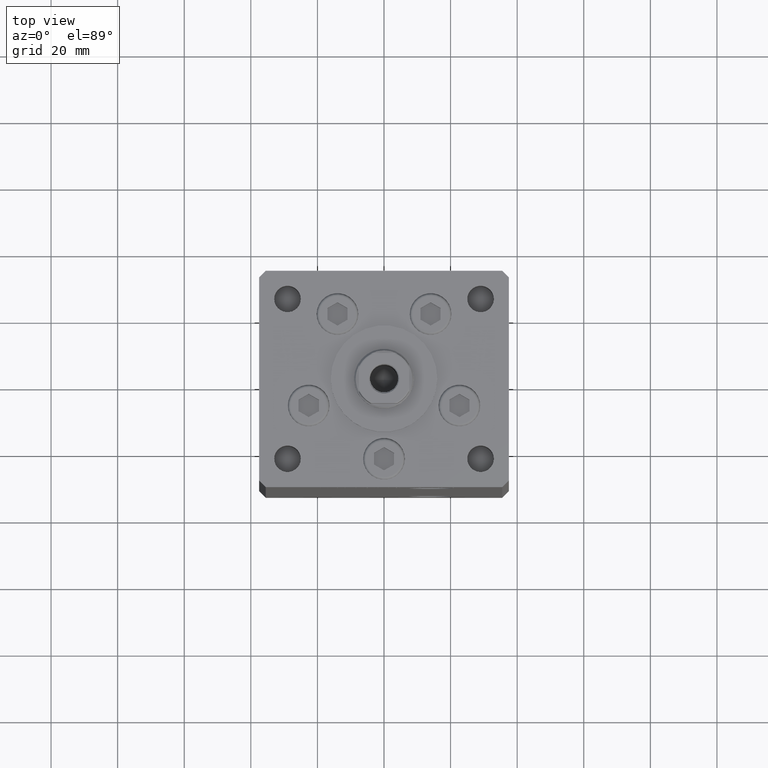
[diagram: clean part render]
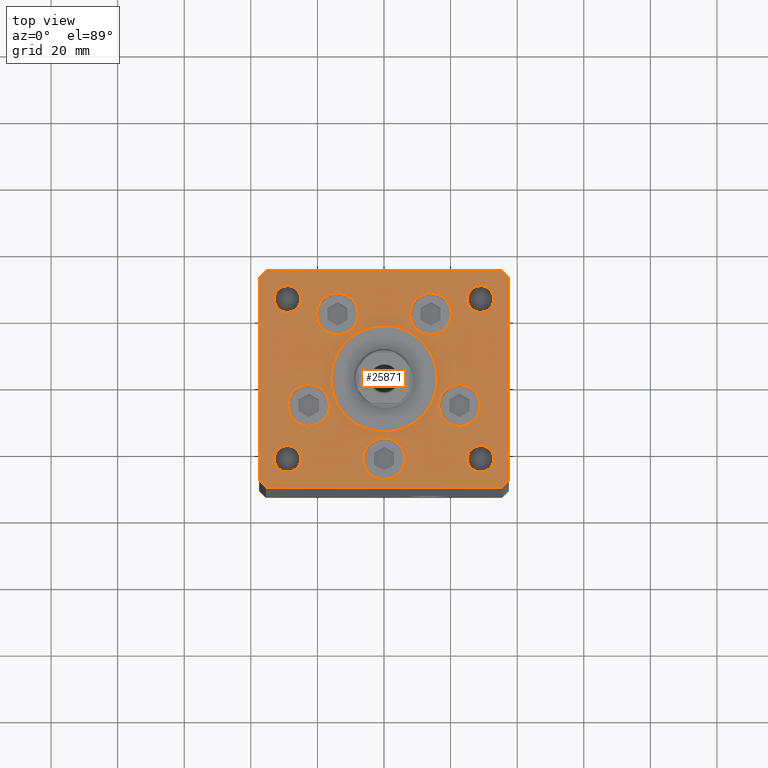
[diagram: same view with one face highlighted and labeled with its STEP entity id]
A machine part, top view. The second image highlights one B-rep face of the part: STEP entity #25871.
In plain terms, the highlighted planar face has unit normal (0, 0, 1).
Its self-contained STEP definition (entity closure, byte-faithful):
#737 = EDGE_LOOP ( 'NONE', ( #39099, #12081 ) ) ;
#1094 = EDGE_CURVE ( 'NONE', #7229, #20669, #46034, .T. ) ;
#1111 = DIRECTION ( 'NONE',  ( 2.275047181608926165E-16, -1.000000000000000000, 0.000000000000000000 ) ) ;
#1276 = LINE ( 'NONE', #21595, #21940 ) ;
#1583 = VERTEX_POINT ( 'NONE', #27508 ) ;
#1691 = EDGE_CURVE ( 'NONE', #40376, #29884, #42012, .T. ) ;
#1784 = ORIENTED_EDGE ( 'NONE', *, *, #12646, .T. ) ;
#1807 = AXIS2_PLACEMENT_3D ( 'NONE', #48741, #32401, #28440 ) ;
#1923 = VECTOR ( 'NONE', #44566, 1000.000000000000000 ) ;
#1967 = CIRCLE ( 'NONE', #7809, 6.250000000000000000 ) ;
#2212 = CARTESIAN_POINT ( 'NONE',  ( 29.00000000000000355, -23.99999999999999645, 0.000000000000000000 ) ) ;
#2290 = DIRECTION ( 'NONE',  ( 1.000000000000000000, 0.000000000000000000, 0.000000000000000000 ) ) ;
#2558 = CIRCLE ( 'NONE', #6767, 4.000000000000000000 ) ;
#2619 = ORIENTED_EDGE ( 'NONE', *, *, #10722, .F. ) ;
#2803 = CARTESIAN_POINT ( 'NONE',  ( 24.99999999999999645, 24.00000000000000355, 0.000000000000000000 ) ) ;
#2891 = DIRECTION ( 'NONE',  ( 1.000000000000000000, 1.172770800660376149E-15, 0.000000000000000000 ) ) ;
#2932 = CARTESIAN_POINT ( 'NONE',  ( -16.00000000000000355, -6.938893903907228378E-15, 0.000000000000000000 ) ) ;
#3154 = CARTESIAN_POINT ( 'NONE',  ( -28.87741699796953654, -8.000000000000000000, 0.000000000000000000 ) ) ;
#3343 = FACE_BOUND ( 'NONE', #737, .T. ) ;
#3506 = DIRECTION ( 'NONE',  ( 1.000000000000000000, 0.000000000000000000, 0.000000000000000000 ) ) ;
#3755 = ORIENTED_EDGE ( 'NONE', *, *, #37509, .T. ) ;
#4187 = CARTESIAN_POINT ( 'NONE',  ( 35.50000000000001421, -32.49999999999992184, 0.000000000000000000 ) ) ;
#4722 = LINE ( 'NONE', #4187, #23007 ) ;
#4935 = DIRECTION ( 'NONE',  ( 0.000000000000000000, 0.000000000000000000, 1.000000000000000000 ) ) ;
#5042 = VECTOR ( 'NONE', #26470, 1000.000000000000000 ) ;
#5086 = CIRCLE ( 'NONE', #15169, 16.00000000000000355 ) ;
#5206 = DIRECTION ( 'NONE',  ( 1.000000000000000000, 0.000000000000000000, 0.000000000000000000 ) ) ;
#5380 = CARTESIAN_POINT ( 'NONE',  ( -35.50000000000001421, -32.50000000000000711, 0.000000000000000000 ) ) ;
#5459 = CARTESIAN_POINT ( 'NONE',  ( -33.00000000000000000, 24.00000000000000711, 0.000000000000000000 ) ) ;
#5508 = CARTESIAN_POINT ( 'NONE',  ( -29.00000000000000000, 24.00000000000000711, 0.000000000000000000 ) ) ;
#5796 = ORIENTED_EDGE ( 'NONE', *, *, #25393, .F. ) ;
#5873 = AXIS2_PLACEMENT_3D ( 'NONE', #42605, #22812, #22301 ) ;
#5950 = AXIS2_PLACEMENT_3D ( 'NONE', #48353, #12223, #49150 ) ;
#5983 = DIRECTION ( 'NONE',  ( 1.000000000000000000, 0.000000000000000000, 0.000000000000000000 ) ) ;
#6049 = EDGE_LOOP ( 'NONE', ( #45644, #28560 ) ) ;
#6053 = CIRCLE ( 'NONE', #50694, 6.250000000000000000 ) ;
#6057 = VECTOR ( 'NONE', #2891, 1000.000000000000000 ) ;
#6767 = AXIS2_PLACEMENT_3D ( 'NONE', #5508, #37470, #28744 ) ;
#6836 = VERTEX_POINT ( 'NONE', #35425 ) ;
#6879 = DIRECTION ( 'NONE',  ( 0.000000000000000000, 1.000000000000000000, 0.000000000000000000 ) ) ;
#6897 = EDGE_CURVE ( 'NONE', #22475, #14531, #22605, .T. ) ;
#7016 = ORIENTED_EDGE ( 'NONE', *, *, #1691, .T. ) ;
#7050 = FACE_BOUND ( 'NONE', #46416, .T. ) ;
#7098 = CARTESIAN_POINT ( 'NONE',  ( -29.00000000000000000, -23.99999999999999645, 0.000000000000000000 ) ) ;
#7229 = VERTEX_POINT ( 'NONE', #25594 ) ;
#7315 = EDGE_CURVE ( 'NONE', #20669, #7229, #21783, .T. ) ;
#7611 = EDGE_LOOP ( 'NONE', ( #23431, #23966 ) ) ;
#7785 = ORIENTED_EDGE ( 'NONE', *, *, #18722, .F. ) ;
#7809 = AXIS2_PLACEMENT_3D ( 'NONE', #18357, #15152, #14398 ) ;
#8151 = CARTESIAN_POINT ( 'NONE',  ( 37.50000000000000711, 30.50000000000001421, 0.000000000000000000 ) ) ;
#8766 = CARTESIAN_POINT ( 'NONE',  ( 22.62741699796953299, -8.000000000000000000, 0.000000000000000000 ) ) ;
#9236 = VERTEX_POINT ( 'NONE', #44583 ) ;
#9726 = CARTESIAN_POINT ( 'NONE',  ( 29.00000000000000355, -23.99999999999999645, 0.000000000000000000 ) ) ;
#9941 = AXIS2_PLACEMENT_3D ( 'NONE', #28937, #48698, #44224 ) ;
#9942 = VERTEX_POINT ( 'NONE', #2932 ) ;
#10248 = DIRECTION ( 'NONE',  ( -0.000000000000000000, -0.000000000000000000, -1.000000000000000000 ) ) ;
#10470 = DIRECTION ( 'NONE',  ( 0.000000000000000000, 0.000000000000000000, 1.000000000000000000 ) ) ;
#10722 = EDGE_CURVE ( 'NONE', #9236, #9942, #18508, .T. ) ;
#10751 = DIRECTION ( 'NONE',  ( -1.000000000000000000, 0.000000000000000000, 0.000000000000000000 ) ) ;
#10958 = CIRCLE ( 'NONE', #39615, 4.000000000000000000 ) ;
#11008 = FACE_BOUND ( 'NONE', #23539, .T. ) ;
#11093 = DIRECTION ( 'NONE',  ( 0.000000000000000000, 0.000000000000000000, 1.000000000000000000 ) ) ;
#11268 = FACE_OUTER_BOUND ( 'NONE', #12476, .T. ) ;
#11285 = DIRECTION ( 'NONE',  ( -1.000000000000000000, 0.000000000000000000, 0.000000000000000000 ) ) ;
#11343 = CARTESIAN_POINT ( 'NONE',  ( 0.000000000000000000, -24.00000000000001066, 0.000000000000000000 ) ) ;
#11846 = EDGE_CURVE ( 'NONE', #43623, #13394, #1276, .T. ) ;
#12081 = ORIENTED_EDGE ( 'NONE', *, *, #7315, .F. ) ;
#12142 = VERTEX_POINT ( 'NONE', #20212 ) ;
#12223 = DIRECTION ( 'NONE',  ( 0.000000000000000000, 0.000000000000000000, 1.000000000000000000 ) ) ;
#12240 = CARTESIAN_POINT ( 'NONE',  ( -6.250000000000000000, -24.00000000000001066, 0.000000000000000000 ) ) ;
#12476 = EDGE_LOOP ( 'NONE', ( #34604, #48745, #22929, #29253, #21997, #7016, #1784, #3755 ) ) ;
#12646 = EDGE_CURVE ( 'NONE', #29884, #20594, #34384, .T. ) ;
#12737 = ORIENTED_EDGE ( 'NONE', *, *, #36770, .F. ) ;
#12867 = DIRECTION ( 'NONE',  ( -1.000000000000000000, 0.000000000000000000, 0.000000000000000000 ) ) ;
#13394 = VERTEX_POINT ( 'NONE', #5380 ) ;
#13418 = CARTESIAN_POINT ( 'NONE',  ( 33.00000000000000000, -23.99999999999999645, 0.000000000000000000 ) ) ;
#13942 = EDGE_CURVE ( 'NONE', #6836, #21865, #2558, .T. ) ;
#14024 = AXIS2_PLACEMENT_3D ( 'NONE', #27899, #4935, #43989 ) ;
#14212 = AXIS2_PLACEMENT_3D ( 'NONE', #11343, #11093, #31151 ) ;
#14398 = DIRECTION ( 'NONE',  ( 1.000000000000000000, 0.000000000000000000, 0.000000000000000000 ) ) ;
#14531 = VERTEX_POINT ( 'NONE', #28704 ) ;
#14548 = CIRCLE ( 'NONE', #49948, 3.999999999999996447 ) ;
#14596 = VERTEX_POINT ( 'NONE', #2803 ) ;
#14679 = VERTEX_POINT ( 'NONE', #51856 ) ;
#14738 = CARTESIAN_POINT ( 'NONE',  ( -22.62741699796953299, -8.000000000000000000, 0.000000000000000000 ) ) ;
#15152 = DIRECTION ( 'NONE',  ( 0.000000000000000000, 0.000000000000000000, 1.000000000000000000 ) ) ;
#15169 = AXIS2_PLACEMENT_3D ( 'NONE', #37154, #32644, #5206 ) ;
#15292 = LINE ( 'NONE', #8151, #1923 ) ;
#15481 = DIRECTION ( 'NONE',  ( -0.000000000000000000, 0.000000000000000000, 1.000000000000000000 ) ) ;
#15676 = ORIENTED_EDGE ( 'NONE', *, *, #21524, .F. ) ;
#15738 = DIRECTION ( 'NONE',  ( 1.000000000000000000, 0.000000000000000000, 0.000000000000000000 ) ) ;
#16101 = AXIS2_PLACEMENT_3D ( 'NONE', #7098, #39054, #23197 ) ;
#16483 = EDGE_CURVE ( 'NONE', #35883, #41618, #38893, .T. ) ;
#16729 = CIRCLE ( 'NONE', #25173, 4.000000000000000000 ) ;
#17965 = CARTESIAN_POINT ( 'NONE',  ( 35.50000000000001421, -32.49999999999992184, 0.000000000000000000 ) ) ;
#17989 = CARTESIAN_POINT ( 'NONE',  ( -37.50000000000001421, 30.50000000000000000, 0.000000000000000000 ) ) ;
#18357 = CARTESIAN_POINT ( 'NONE',  ( 13.99106857963324124, 19.50000000000000000, 0.000000000000000000 ) ) ;
#18508 = CIRCLE ( 'NONE', #5873, 16.00000000000000355 ) ;
#18688 = PLANE ( 'NONE',  #34807 ) ;
#18722 = EDGE_CURVE ( 'NONE', #14596, #1583, #22014, .T. ) ;
#18748 = CARTESIAN_POINT ( 'NONE',  ( -25.00000000000000355, -23.99999999999999645, 0.000000000000000000 ) ) ;
#19162 = EDGE_CURVE ( 'NONE', #1583, #14596, #42226, .T. ) ;
#19284 = EDGE_CURVE ( 'NONE', #14679, #41131, #28769, .T. ) ;
#19354 = EDGE_CURVE ( 'NONE', #44250, #20274, #40567, .T. ) ;
#19456 = AXIS2_PLACEMENT_3D ( 'NONE', #47559, #47311, #3506 ) ;
#19570 = EDGE_LOOP ( 'NONE', ( #35004, #38842 ) ) ;
#19982 = CARTESIAN_POINT ( 'NONE',  ( -29.00000000000000000, 24.00000000000000711, 0.000000000000000000 ) ) ;
#20009 = EDGE_CURVE ( 'NONE', #34486, #35957, #30395, .T. ) ;
#20160 = VERTEX_POINT ( 'NONE', #43705 ) ;
#20212 = CARTESIAN_POINT ( 'NONE',  ( 25.00000000000000355, -23.99999999999999645, 0.000000000000000000 ) ) ;
#20274 = VERTEX_POINT ( 'NONE', #44766 ) ;
#20451 = CIRCLE ( 'NONE', #42379, 4.000000000000000000 ) ;
#20594 = VERTEX_POINT ( 'NONE', #50932 ) ;
#20669 = VERTEX_POINT ( 'NONE', #3154 ) ;
#20916 = DIRECTION ( 'NONE',  ( -1.000000000000000000, -1.954618001100627573E-16, 0.000000000000000000 ) ) ;
#21524 = EDGE_CURVE ( 'NONE', #20160, #51148, #6053, .T. ) ;
#21595 = CARTESIAN_POINT ( 'NONE',  ( -37.50000000000000000, -30.50000000000004263, 0.000000000000000000 ) ) ;
#21674 = CARTESIAN_POINT ( 'NONE',  ( 35.50000000000000000, 32.49999999999999289, 0.000000000000000000 ) ) ;
#21783 = CIRCLE ( 'NONE', #50393, 6.250000000000001776 ) ;
#21865 = VERTEX_POINT ( 'NONE', #5459 ) ;
#21940 = VECTOR ( 'NONE', #37956, 1000.000000000000000 ) ;
#21997 = ORIENTED_EDGE ( 'NONE', *, *, #24183, .T. ) ;
#22014 = CIRCLE ( 'NONE', #34624, 4.000000000000000000 ) ;
#22108 = ORIENTED_EDGE ( 'NONE', *, *, #44313, .F. ) ;
#22301 = DIRECTION ( 'NONE',  ( 1.000000000000000000, 0.000000000000000000, 0.000000000000000000 ) ) ;
#22475 = VERTEX_POINT ( 'NONE', #50956 ) ;
#22605 = CIRCLE ( 'NONE', #31030, 6.250000000000001776 ) ;
#22681 = ORIENTED_EDGE ( 'NONE', *, *, #19162, .F. ) ;
#22739 = VERTEX_POINT ( 'NONE', #13418 ) ;
#22812 = DIRECTION ( 'NONE',  ( 0.000000000000000000, 0.000000000000000000, 1.000000000000000000 ) ) ;
#22864 = VECTOR ( 'NONE', #6879, 1000.000000000000000 ) ;
#22929 = ORIENTED_EDGE ( 'NONE', *, *, #25749, .T. ) ;
#23007 = VECTOR ( 'NONE', #37199, 1000.000000000000000 ) ;
#23197 = DIRECTION ( 'NONE',  ( 1.000000000000000000, 0.000000000000000000, 0.000000000000000000 ) ) ;
#23265 = CARTESIAN_POINT ( 'NONE',  ( -35.50000000000000711, 32.49999999999997868, 0.000000000000000000 ) ) ;
#23431 = ORIENTED_EDGE ( 'NONE', *, *, #51648, .F. ) ;
#23539 = EDGE_LOOP ( 'NONE', ( #26177, #2619 ) ) ;
#23631 = EDGE_CURVE ( 'NONE', #12142, #22739, #20451, .T. ) ;
#23966 = ORIENTED_EDGE ( 'NONE', *, *, #16483, .F. ) ;
#24183 = EDGE_CURVE ( 'NONE', #35957, #40376, #15292, .T. ) ;
#24597 = DIRECTION ( 'NONE',  ( 0.000000000000000000, 0.000000000000000000, 1.000000000000000000 ) ) ;
#24621 = CARTESIAN_POINT ( 'NONE',  ( 0.000000000000000000, -24.00000000000001066, 0.000000000000000000 ) ) ;
#24860 = DIRECTION ( 'NONE',  ( 1.000000000000000000, 0.000000000000000000, 0.000000000000000000 ) ) ;
#25173 = AXIS2_PLACEMENT_3D ( 'NONE', #2212, #37413, #12867 ) ;
#25393 = EDGE_CURVE ( 'NONE', #51148, #20160, #1967, .T. ) ;
#25594 = CARTESIAN_POINT ( 'NONE',  ( -16.37741699796953299, -8.000000000000000000, 0.000000000000000000 ) ) ;
#25749 = EDGE_CURVE ( 'NONE', #33731, #34486, #4722, .T. ) ;
#25871 = ADVANCED_FACE ( 'NONE', ( #11008, #35028, #43201, #7050, #31065, #3343, #34786, #42944, #50863, #11268, #47655 ), #18688, .T. ) ;
#26177 = ORIENTED_EDGE ( 'NONE', *, *, #43722, .F. ) ;
#26260 = AXIS2_PLACEMENT_3D ( 'NONE', #24621, #47690, #45975 ) ;
#26470 = DIRECTION ( 'NONE',  ( -0.7071067811865524577, -0.7071067811865426878, 0.000000000000000000 ) ) ;
#27112 = CARTESIAN_POINT ( 'NONE',  ( 0.000000000000000000, 0.000000000000000000, 0.000000000000000000 ) ) ;
#27165 = CARTESIAN_POINT ( 'NONE',  ( -35.50000000000001421, -32.50000000000000711, 0.000000000000000000 ) ) ;
#27304 = ORIENTED_EDGE ( 'NONE', *, *, #19354, .F. ) ;
#27355 = CARTESIAN_POINT ( 'NONE',  ( 37.50000000000000711, 30.50000000000001421, 0.000000000000000000 ) ) ;
#27508 = CARTESIAN_POINT ( 'NONE',  ( 33.00000000000000000, 24.00000000000000355, 0.000000000000000000 ) ) ;
#27899 = CARTESIAN_POINT ( 'NONE',  ( -22.62741699796953299, -8.000000000000000000, 0.000000000000000000 ) ) ;
#28440 = DIRECTION ( 'NONE',  ( 1.000000000000000000, 0.000000000000000000, 0.000000000000000000 ) ) ;
#28560 = ORIENTED_EDGE ( 'NONE', *, *, #23631, .T. ) ;
#28704 = CARTESIAN_POINT ( 'NONE',  ( 28.87741699796953654, -8.000000000000000000, 0.000000000000000000 ) ) ;
#28744 = DIRECTION ( 'NONE',  ( -1.000000000000000000, 0.000000000000000000, 0.000000000000000000 ) ) ;
#28769 = CIRCLE ( 'NONE', #26260, 6.250000000000000000 ) ;
#28937 = CARTESIAN_POINT ( 'NONE',  ( 22.62741699796953299, -8.000000000000000000, 0.000000000000000000 ) ) ;
#29253 = ORIENTED_EDGE ( 'NONE', *, *, #20009, .T. ) ;
#29355 = CARTESIAN_POINT ( 'NONE',  ( 35.50000000000000000, 32.49999999999999289, 0.000000000000000000 ) ) ;
#29884 = VERTEX_POINT ( 'NONE', #31454 ) ;
#29964 = ORIENTED_EDGE ( 'NONE', *, *, #43687, .T. ) ;
#30395 = LINE ( 'NONE', #30904, #22864 ) ;
#30904 = CARTESIAN_POINT ( 'NONE',  ( 37.50000000000000711, -30.49999999999992895, 0.000000000000000000 ) ) ;
#31030 = AXIS2_PLACEMENT_3D ( 'NONE', #8766, #24597, #24860 ) ;
#31065 = FACE_BOUND ( 'NONE', #19570, .T. ) ;
#31151 = DIRECTION ( 'NONE',  ( 1.000000000000000000, 0.000000000000000000, 0.000000000000000000 ) ) ;
#31454 = CARTESIAN_POINT ( 'NONE',  ( -35.50000000000000711, 32.49999999999997868, 0.000000000000000000 ) ) ;
#31469 = DIRECTION ( 'NONE',  ( 0.000000000000000000, 0.000000000000000000, 1.000000000000000000 ) ) ;
#31491 = CARTESIAN_POINT ( 'NONE',  ( -20.24106857963324302, 19.50000000000000000, 0.000000000000000000 ) ) ;
#31571 = CARTESIAN_POINT ( 'NONE',  ( -32.99999999999999289, -23.99999999999999645, 0.000000000000000000 ) ) ;
#32401 = DIRECTION ( 'NONE',  ( 0.000000000000000000, 0.000000000000000000, 1.000000000000000000 ) ) ;
#32644 = DIRECTION ( 'NONE',  ( 0.000000000000000000, 0.000000000000000000, 1.000000000000000000 ) ) ;
#32728 = VECTOR ( 'NONE', #1111, 1000.000000000000000 ) ;
#33297 = LINE ( 'NONE', #17989, #32728 ) ;
#33731 = VERTEX_POINT ( 'NONE', #17965 ) ;
#34152 = CARTESIAN_POINT ( 'NONE',  ( 20.24106857963324302, 19.50000000000000000, 0.000000000000000000 ) ) ;
#34384 = LINE ( 'NONE', #23265, #5042 ) ;
#34486 = VERTEX_POINT ( 'NONE', #37336 ) ;
#34487 = CARTESIAN_POINT ( 'NONE',  ( 29.00000000000000000, 24.00000000000000355, 0.000000000000000000 ) ) ;
#34604 = ORIENTED_EDGE ( 'NONE', *, *, #11846, .T. ) ;
#34624 = AXIS2_PLACEMENT_3D ( 'NONE', #34487, #10470, #5983 ) ;
#34786 = FACE_BOUND ( 'NONE', #38370, .T. ) ;
#34807 = AXIS2_PLACEMENT_3D ( 'NONE', #27112, #15481, #15738 ) ;
#35004 = ORIENTED_EDGE ( 'NONE', *, *, #19284, .F. ) ;
#35028 = FACE_BOUND ( 'NONE', #47129, .T. ) ;
#35175 = CARTESIAN_POINT ( 'NONE',  ( 13.99106857963324124, 19.50000000000000000, 0.000000000000000000 ) ) ;
#35425 = CARTESIAN_POINT ( 'NONE',  ( -25.00000000000000000, 24.00000000000000711, 0.000000000000000000 ) ) ;
#35711 = DIRECTION ( 'NONE',  ( 0.000000000000000000, 0.000000000000000000, 1.000000000000000000 ) ) ;
#35883 = VERTEX_POINT ( 'NONE', #31571 ) ;
#35957 = VERTEX_POINT ( 'NONE', #27355 ) ;
#36770 = EDGE_CURVE ( 'NONE', #14531, #22475, #47844, .T. ) ;
#37154 = CARTESIAN_POINT ( 'NONE',  ( 0.000000000000000000, -6.938893903907228378E-15, 0.000000000000000000 ) ) ;
#37199 = DIRECTION ( 'NONE',  ( 0.7071067811865463515, 0.7071067811865487940, 0.000000000000000000 ) ) ;
#37336 = CARTESIAN_POINT ( 'NONE',  ( 37.50000000000000711, -30.49999999999992895, 0.000000000000000000 ) ) ;
#37413 = DIRECTION ( 'NONE',  ( -0.000000000000000000, -0.000000000000000000, -1.000000000000000000 ) ) ;
#37470 = DIRECTION ( 'NONE',  ( -0.000000000000000000, -0.000000000000000000, -1.000000000000000000 ) ) ;
#37509 = EDGE_CURVE ( 'NONE', #20594, #43623, #33297, .T. ) ;
#37956 = DIRECTION ( 'NONE',  ( 0.7071067811865512365, -0.7071067811865439090, 0.000000000000000000 ) ) ;
#38020 = EDGE_CURVE ( 'NONE', #22739, #12142, #16729, .T. ) ;
#38370 = EDGE_LOOP ( 'NONE', ( #52209, #29964 ) ) ;
#38400 = EDGE_CURVE ( 'NONE', #41131, #14679, #45392, .T. ) ;
#38842 = ORIENTED_EDGE ( 'NONE', *, *, #38400, .F. ) ;
#38893 = CIRCLE ( 'NONE', #16101, 3.999999999999996447 ) ;
#39054 = DIRECTION ( 'NONE',  ( 0.000000000000000000, 0.000000000000000000, 1.000000000000000000 ) ) ;
#39099 = ORIENTED_EDGE ( 'NONE', *, *, #1094, .F. ) ;
#39157 = DIRECTION ( 'NONE',  ( 1.000000000000000000, 0.000000000000000000, 0.000000000000000000 ) ) ;
#39521 = DIRECTION ( 'NONE',  ( 0.000000000000000000, 0.000000000000000000, 1.000000000000000000 ) ) ;
#39615 = AXIS2_PLACEMENT_3D ( 'NONE', #19982, #51382, #11285 ) ;
#40109 = EDGE_LOOP ( 'NONE', ( #22681, #7785 ) ) ;
#40376 = VERTEX_POINT ( 'NONE', #21674 ) ;
#40567 = CIRCLE ( 'NONE', #1807, 6.250000000000000000 ) ;
#41131 = VERTEX_POINT ( 'NONE', #12240 ) ;
#41618 = VERTEX_POINT ( 'NONE', #18748 ) ;
#41820 = VECTOR ( 'NONE', #20916, 1000.000000000000000 ) ;
#42012 = LINE ( 'NONE', #29355, #41820 ) ;
#42226 = CIRCLE ( 'NONE', #19456, 4.000000000000000000 ) ;
#42379 = AXIS2_PLACEMENT_3D ( 'NONE', #9726, #10248, #10751 ) ;
#42605 = CARTESIAN_POINT ( 'NONE',  ( 0.000000000000000000, -6.938893903907228378E-15, 0.000000000000000000 ) ) ;
#42944 = FACE_BOUND ( 'NONE', #40109, .T. ) ;
#42962 = CARTESIAN_POINT ( 'NONE',  ( -37.50000000000000000, -30.50000000000004263, 0.000000000000000000 ) ) ;
#43201 = FACE_BOUND ( 'NONE', #51136, .T. ) ;
#43623 = VERTEX_POINT ( 'NONE', #42962 ) ;
#43687 = EDGE_CURVE ( 'NONE', #21865, #6836, #10958, .T. ) ;
#43705 = CARTESIAN_POINT ( 'NONE',  ( 7.741068579633241242, 19.50000000000000000, 0.000000000000000000 ) ) ;
#43722 = EDGE_CURVE ( 'NONE', #9942, #9236, #5086, .T. ) ;
#43987 = DIRECTION ( 'NONE',  ( 1.000000000000000000, 0.000000000000000000, 0.000000000000000000 ) ) ;
#43989 = DIRECTION ( 'NONE',  ( 1.000000000000000000, 0.000000000000000000, 0.000000000000000000 ) ) ;
#44224 = DIRECTION ( 'NONE',  ( 1.000000000000000000, 0.000000000000000000, 0.000000000000000000 ) ) ;
#44250 = VERTEX_POINT ( 'NONE', #31491 ) ;
#44313 = EDGE_CURVE ( 'NONE', #20274, #44250, #45540, .T. ) ;
#44566 = DIRECTION ( 'NONE',  ( -0.7071067811865524577, 0.7071067811865426878, 0.000000000000000000 ) ) ;
#44583 = CARTESIAN_POINT ( 'NONE',  ( 16.00000000000000355, -4.979459025271462852E-15, 0.000000000000000000 ) ) ;
#44766 = CARTESIAN_POINT ( 'NONE',  ( -7.741068579633241242, 19.50000000000000000, 0.000000000000000000 ) ) ;
#45392 = CIRCLE ( 'NONE', #14212, 6.250000000000000000 ) ;
#45540 = CIRCLE ( 'NONE', #5950, 6.250000000000000000 ) ;
#45644 = ORIENTED_EDGE ( 'NONE', *, *, #38020, .T. ) ;
#45975 = DIRECTION ( 'NONE',  ( 1.000000000000000000, 0.000000000000000000, 0.000000000000000000 ) ) ;
#46034 = CIRCLE ( 'NONE', #14024, 6.250000000000001776 ) ;
#46416 = EDGE_LOOP ( 'NONE', ( #12737, #48685 ) ) ;
#47129 = EDGE_LOOP ( 'NONE', ( #22108, #27304 ) ) ;
#47311 = DIRECTION ( 'NONE',  ( 0.000000000000000000, 0.000000000000000000, 1.000000000000000000 ) ) ;
#47559 = CARTESIAN_POINT ( 'NONE',  ( 29.00000000000000000, 24.00000000000000355, 0.000000000000000000 ) ) ;
#47655 = FACE_BOUND ( 'NONE', #6049, .T. ) ;
#47690 = DIRECTION ( 'NONE',  ( 0.000000000000000000, 0.000000000000000000, 1.000000000000000000 ) ) ;
#47844 = CIRCLE ( 'NONE', #9941, 6.250000000000001776 ) ;
#48353 = CARTESIAN_POINT ( 'NONE',  ( -13.99106857963324124, 19.50000000000000000, 0.000000000000000000 ) ) ;
#48685 = ORIENTED_EDGE ( 'NONE', *, *, #6897, .F. ) ;
#48698 = DIRECTION ( 'NONE',  ( 0.000000000000000000, 0.000000000000000000, 1.000000000000000000 ) ) ;
#48741 = CARTESIAN_POINT ( 'NONE',  ( -13.99106857963324124, 19.50000000000000000, 0.000000000000000000 ) ) ;
#48745 = ORIENTED_EDGE ( 'NONE', *, *, #49688, .T. ) ;
#49150 = DIRECTION ( 'NONE',  ( 1.000000000000000000, 0.000000000000000000, 0.000000000000000000 ) ) ;
#49688 = EDGE_CURVE ( 'NONE', #13394, #33731, #51947, .T. ) ;
#49948 = AXIS2_PLACEMENT_3D ( 'NONE', #50575, #35711, #2290 ) ;
#50393 = AXIS2_PLACEMENT_3D ( 'NONE', #14738, #39521, #43987 ) ;
#50575 = CARTESIAN_POINT ( 'NONE',  ( -29.00000000000000000, -23.99999999999999645, 0.000000000000000000 ) ) ;
#50694 = AXIS2_PLACEMENT_3D ( 'NONE', #35175, #31469, #39157 ) ;
#50863 = FACE_BOUND ( 'NONE', #7611, .T. ) ;
#50932 = CARTESIAN_POINT ( 'NONE',  ( -37.50000000000001421, 30.50000000000000000, 0.000000000000000000 ) ) ;
#50956 = CARTESIAN_POINT ( 'NONE',  ( 16.37741699796953299, -8.000000000000000000, 0.000000000000000000 ) ) ;
#51136 = EDGE_LOOP ( 'NONE', ( #5796, #15676 ) ) ;
#51148 = VERTEX_POINT ( 'NONE', #34152 ) ;
#51382 = DIRECTION ( 'NONE',  ( -0.000000000000000000, -0.000000000000000000, -1.000000000000000000 ) ) ;
#51648 = EDGE_CURVE ( 'NONE', #41618, #35883, #14548, .T. ) ;
#51856 = CARTESIAN_POINT ( 'NONE',  ( 6.250000000000000000, -24.00000000000001066, 0.000000000000000000 ) ) ;
#51947 = LINE ( 'NONE', #27165, #6057 ) ;
#52209 = ORIENTED_EDGE ( 'NONE', *, *, #13942, .T. ) ;